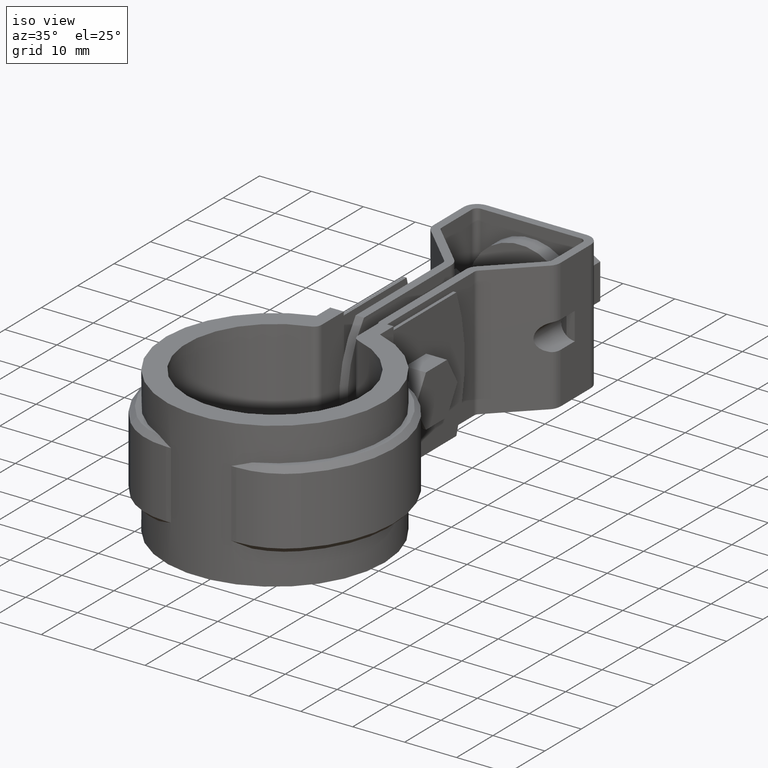
[diagram: clean part render]
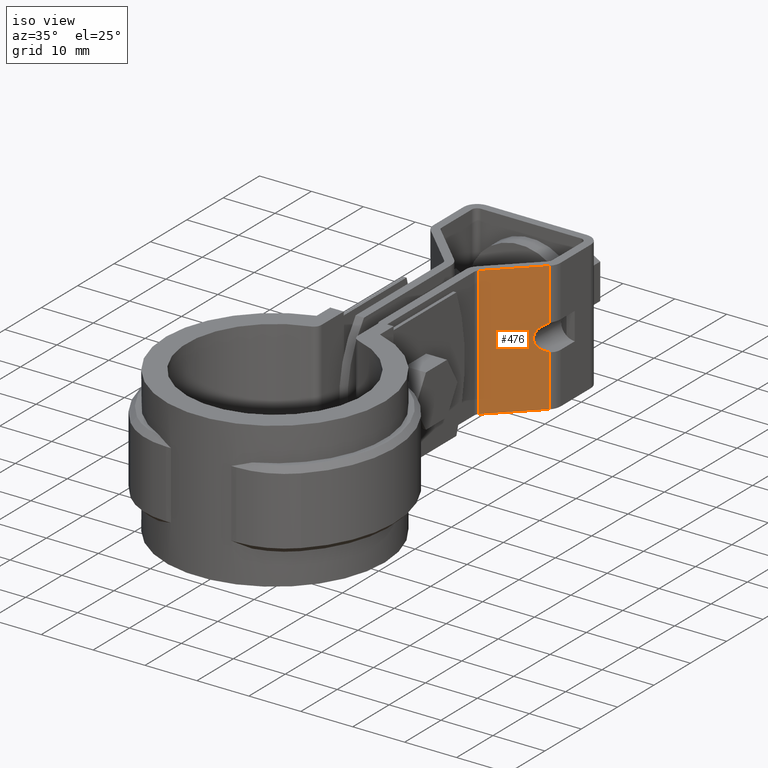
[diagram: same view with one face highlighted and labeled with its STEP entity id]
A machine part, iso view. The second image highlights one B-rep face of the part: STEP entity #476.
In plain terms, the highlighted planar face has unit normal (0.6983, -0.7158, -0).
Its self-contained STEP definition (entity closure, byte-faithful):
#476 = ADVANCED_FACE( '', ( #865 ), #866, .T. );
#865 = FACE_OUTER_BOUND( '', #1703, .T. );
#866 = PLANE( '', #1704 );
#1703 = EDGE_LOOP( '', ( #3926, #3927, #3928, #3929, #3930, #3931 ) );
#1704 = AXIS2_PLACEMENT_3D( '', #3932, #3933, #3934 );
#3926 = ORIENTED_EDGE( '', *, *, #4774, .T. );
#3927 = ORIENTED_EDGE( '', *, *, #4780, .F. );
#3928 = ORIENTED_EDGE( '', *, *, #4687, .T. );
#3929 = ORIENTED_EDGE( '', *, *, #4706, .F. );
#3930 = ORIENTED_EDGE( '', *, *, #4666, .F. );
#3931 = ORIENTED_EDGE( '', *, *, #4781, .F. );
#3932 = CARTESIAN_POINT( '', ( 3.90167695977761, 51.8596539598701, 2.00519288673373E-006 ) );
#3933 = DIRECTION( '', ( 0.698323830604044, -0.715781969324804, -1.22130394891839E-008 ) );
#3934 = DIRECTION( '', ( -0.715781969324804, -0.698323830604043, -1.13243629587269E-008 ) );
#4666 = EDGE_CURVE( '', #5502, #5504, #5505, .T. );
#4687 = EDGE_CURVE( '', #5542, #5543, #5544, .T. );
#4706 = EDGE_CURVE( '', #5504, #5543, #5575, .T. );
#4774 = EDGE_CURVE( '', #5682, #5680, #5683, .T. );
#4780 = EDGE_CURVE( '', #5542, #5680, #5690, .T. );
#4781 = EDGE_CURVE( '', #5682, #5502, #5691, .T. );
#5502 = VERTEX_POINT( '', #8163 );
#5504 = VERTEX_POINT( '', #8165 );
#5505 = LINE( '', #8166, #8167 );
#5542 = VERTEX_POINT( '', #8215 );
#5543 = VERTEX_POINT( '', #8216 );
#5544 = ELLIPSE( '', #8217, 3.70224472166266, 2.64999999999997 );
#5575 = LINE( '', #8283, #8284 );
#5680 = VERTEX_POINT( '', #8457 );
#5682 = VERTEX_POINT( '', #8459 );
#5683 = LINE( '', #8460, #8461 );
#5690 = LINE( '', #8471, #8472 );
#5691 = LINE( '', #8473, #8474 );
#8163 = CARTESIAN_POINT( '', ( 3.30167695574875, 51.2742881374101, 1.99570029946194E-006 ) );
#8165 = CARTESIAN_POINT( '', ( 11.4656428184775, 59.2391324035478, 2.12486213346796E-006 ) );
#8166 = CARTESIAN_POINT( '', ( 3.90167695977761, 51.8596539598701, 2.00519288673373E-006 ) );
#8167 = VECTOR( '', #9211, 1000.00000000000 );
#8215 = CARTESIAN_POINT( '', ( 11.4656428121211, 59.2391326538175, -15.0312589214361 ) );
#8216 = CARTESIAN_POINT( '', ( 11.4656428142619, 59.2391325695268, -9.96873682883963 ) );
#8217 = AXIS2_PLACEMENT_3D( '', #9250, #9251, #9252 );
#8283 = CARTESIAN_POINT( '', ( 11.4656428184775, 59.2391324035478, 2.12486213346796E-006 ) );
#8284 = VECTOR( '', #9277, 1000.00000000000 );
#8457 = CARTESIAN_POINT( '', ( 11.4656428079055, 59.2391328197965, -24.9999978751379 ) );
#8459 = CARTESIAN_POINT( '', ( 3.30167694517671, 51.2742885536587, -24.9999980042997 ) );
#8460 = CARTESIAN_POINT( '', ( 3.90167694920557, 51.8596543761188, -24.9999979948071 ) );
#8461 = VECTOR( '', #9383, 1000.00000000000 );
#8471 = CARTESIAN_POINT( '', ( 11.4656428184775, 59.2391324035478, 2.12486213346796E-006 ) );
#8472 = VECTOR( '', #9393, 1000.00000000000 );
#8473 = CARTESIAN_POINT( '', ( 3.30167695574875, 51.2742881374101, 1.99570028558416E-006 ) );
#8474 = VECTOR( '', #9394, 1000.00000000000 );
#9211 = DIRECTION( '', ( 0.715781969324801, 0.698323830604047, 1.13243629587269E-008 ) );
#9250 = CARTESIAN_POINT( '', ( 12.2500008460789, 60.0043599149076, -12.4999978627286 ) );
#9251 = DIRECTION( '', ( -0.698323830604042, 0.715781969324806, 1.22130394540815E-008 ) );
#9252 = DIRECTION( '', ( 0.715781969324806, 0.698323830604042, 1.13243629947068E-008 ) );
#9277 = DIRECTION( '', ( -4.22881699458974E-010, 1.66499459774983E-008, -1.00000000000000 ) );
#9383 = DIRECTION( '', ( 0.715781969324801, 0.698323830604047, 1.13243629587269E-008 ) );
#9393 = DIRECTION( '', ( -4.22881699458974E-010, 1.66499459774983E-008, -1.00000000000000 ) );
#9394 = DIRECTION( '', ( 4.22881638228656E-010, -1.66499460372352E-008, 1.00000000000000 ) );